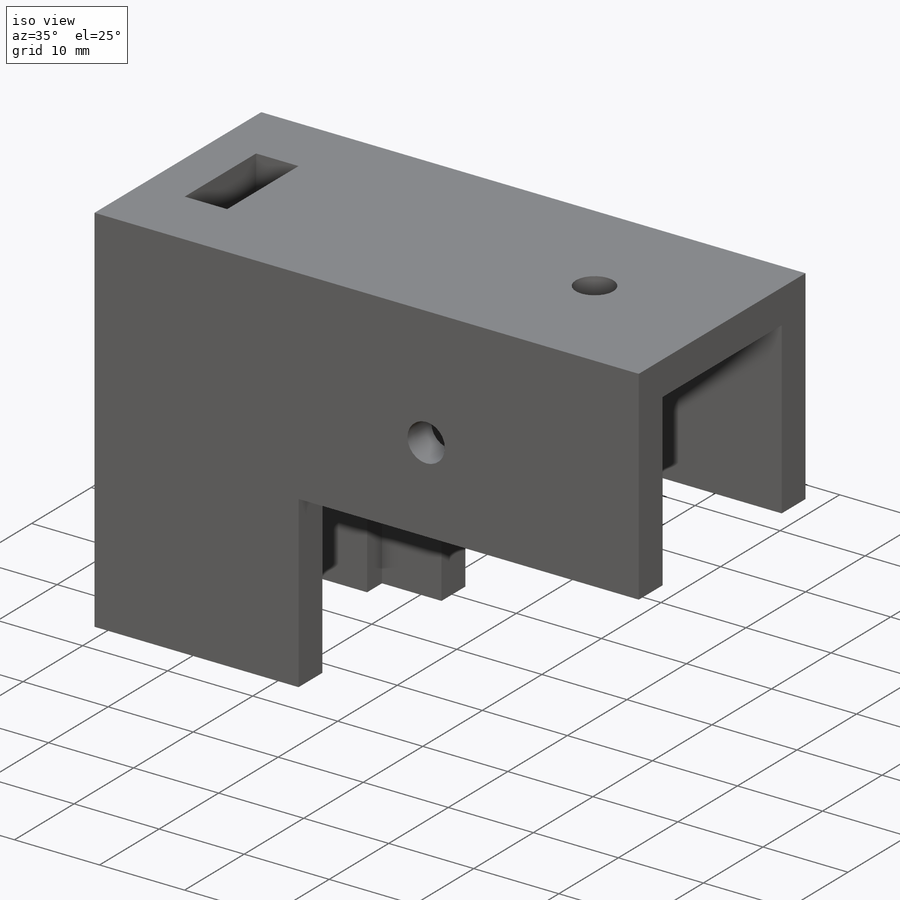
[diagram: iso view]
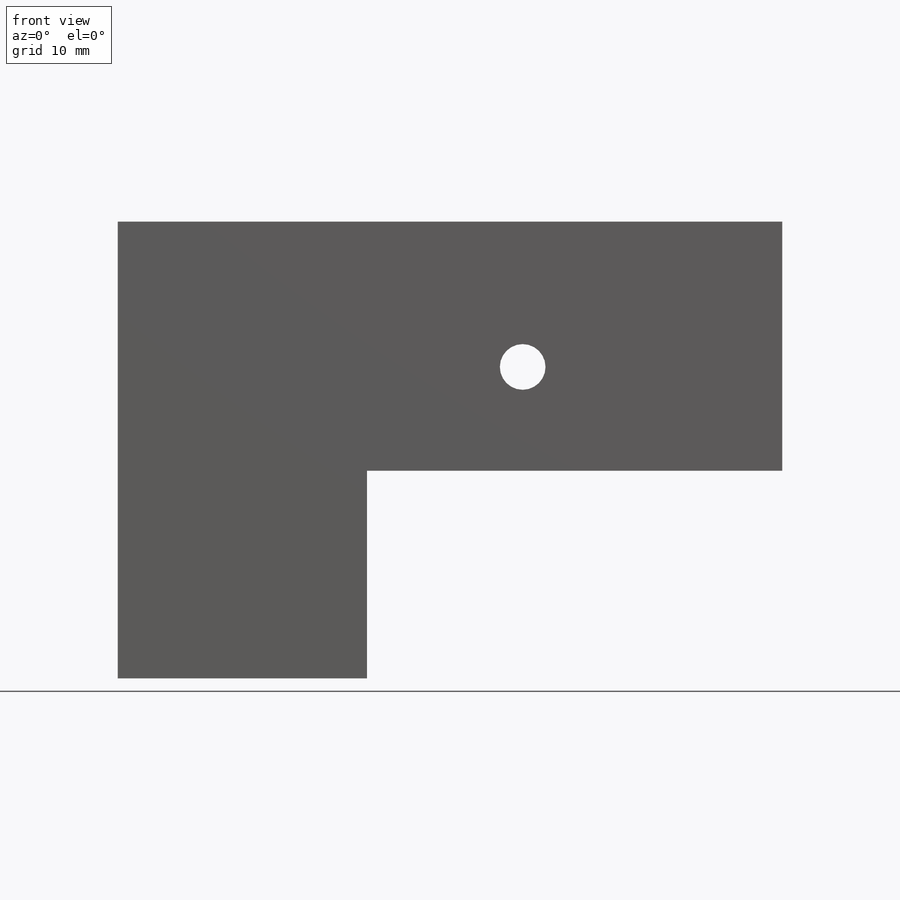
[diagram: front view]
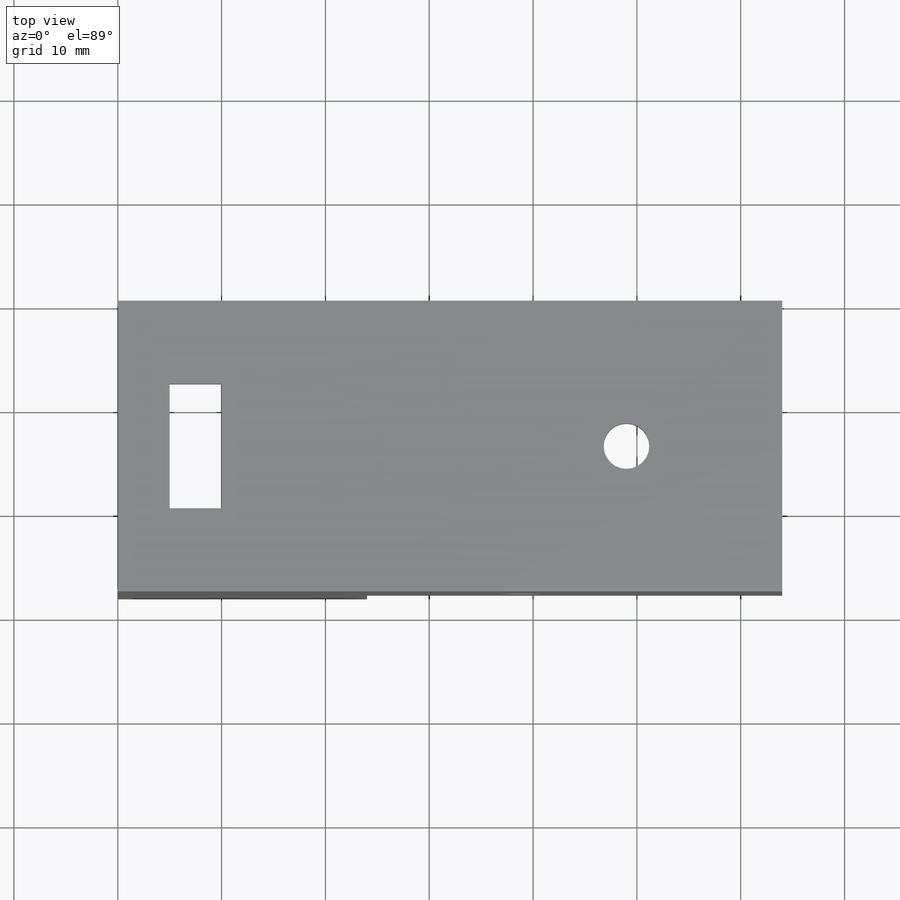
[diagram: top view]
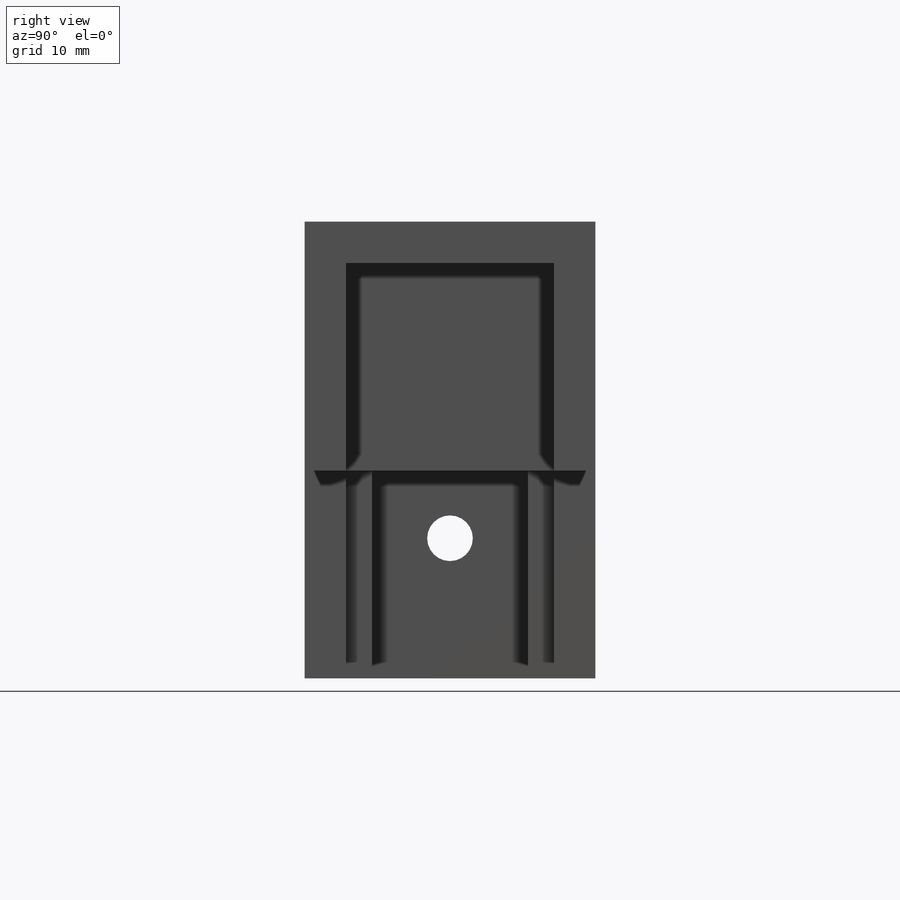
[diagram: right view]
SOLIDWORKS PART (.sldprt)
format: sldprt  version: not decoded by parser v0  size: 318,464 bytes
history: native  units: mm
features: sketch x11, plane x3, cut_extrude x3, hole x3, material x1, extrude x1 (+9 scaffold rows collapsed)
feature tree (31):
  scaffold x9  (default folders/planes/origin — collapsed)
  material  "Matériau <non spécifié>"
  plane  "Plan de face"
  plane  "Plan de dessus"
  plane  "Plan de droite"
  sketch  "Esquisse1"  dims[D1=64.0mm D2=24.0mm D3=24.0mm D4=44.0mm]
  extrude  "Boss.-Extru.1"  Depth=28mm
  sketch  "Esquisse2"  dims[D1=2.5mm D2=6.0mm D3=2.5mm D4=7.0mm D5=20.0mm D6=7.0mm D7=2.5mm D8=6.0mm D9=2.5mm D10=7.0mm D11=4.0mm D12=4.0mm D13=4.0mm]
  cut_extrude  "Enlèv. mat.-Extru.1"  Depth=4mm
  sketch  "Esquisse3"  dims[c1.D1=~22.510267mm c1.D2=~35.781725mm c2.D1=7.0mm c2.D2=4.0mm c2.D3=4.0mm]
  cut_extrude  "Enlèv. mat.-Extru.2"  Depth=4mm
  hole  "Dégagement M41"  Diameter=4.4mm Depth=5mm
  sketch  "Esquisse6"  dims[D1=15.5mm D2=13.5mm]
  sketch  "Esquisse4"  dims[hole-wizard template sketch: 47 standard entries collapsed; hole parameters kept: c15.Profondeur du perçage=5.0mm c15.D3=~14.816244mm c15.Angle de pointe=180.0deg]
  hole  "Dégagement M42"  Diameter=4.4mm Depth=28mm
  sketch  "Esquisse8"  dims[D1=25.0mm D2=10.0mm D3=12.0mm D4=10.0mm]
  sketch  "Esquisse9"  dims[hole-wizard template sketch: 59 standard entries collapsed; hole parameters kept: c18.Diamètre du perçage jusqu'au prochain=4.4mm c18.Profondeur du perçage jusqu'au prochain=28.0mm]
  hole  "Dégagement M43"  Diameter=4.4mm Depth=5mm
  sketch  "Esquisse11"  dims[D1=15.0mm]
  sketch  "Esquisse10"  dims[hole-wizard template sketch: 47 standard entries collapsed; hole parameters kept: c15.Profondeur du perçage=5.0mm c15.D3=~14.816244mm c15.Angle de pointe=180.0deg]
  sketch  "Esquisse12"  dims[c1.D1=4.59mm c1.D2=8.0mm c2.D1=8.0mm c2.D2=6.0mm c2.D3=4.0mm c2.D4=6.0mm]
  sketch  "Esquisse13"  dims[c1.D1=~11.464186mm c1.D2=~7.37045mm c2.D1=12.0mm c2.D2=5.0mm c2.D3=5.0mm c2.D4=5.0mm]
  cut_extrude  "Enlèv. mat.-Extru.4"  Depth=10mm
decode coverage: 18 of 18 modeling features carry decoded parameters
note: ~ marks probable driven/reference dimensions
note: suppression state not decoded; provenance and decode notes live in map.json
